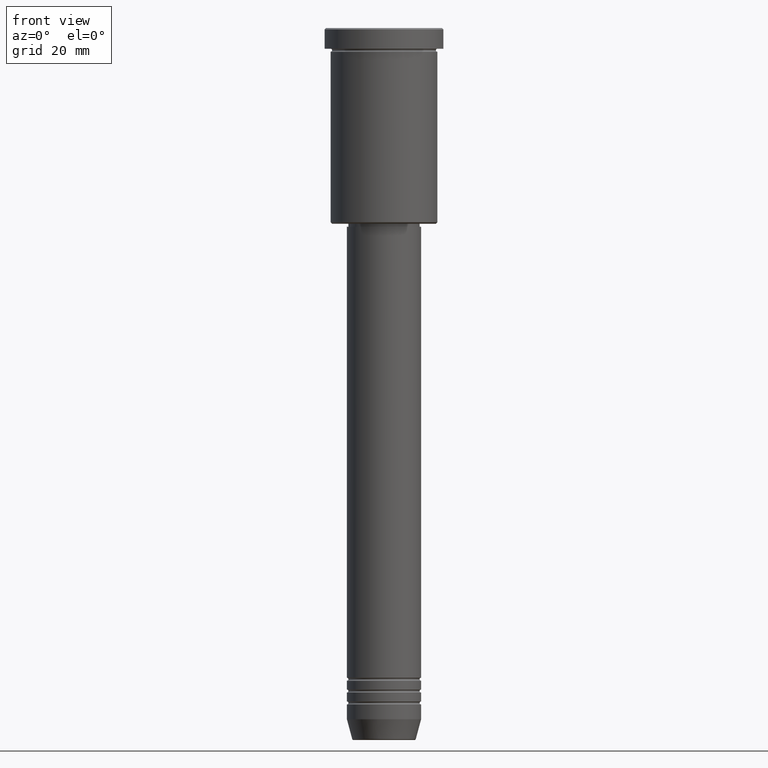
[diagram: clean part render]
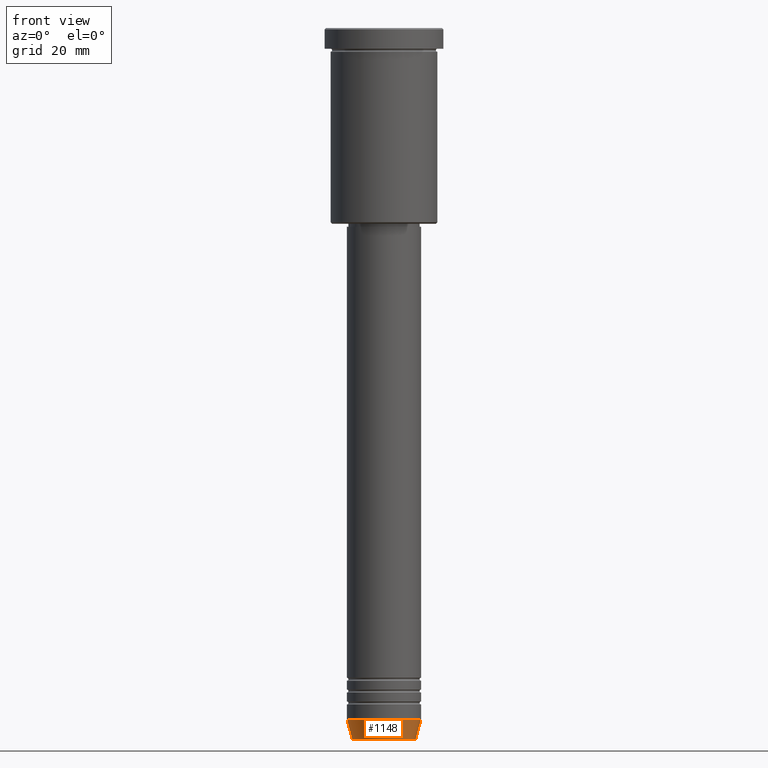
[diagram: same view with one face highlighted and labeled with its STEP entity id]
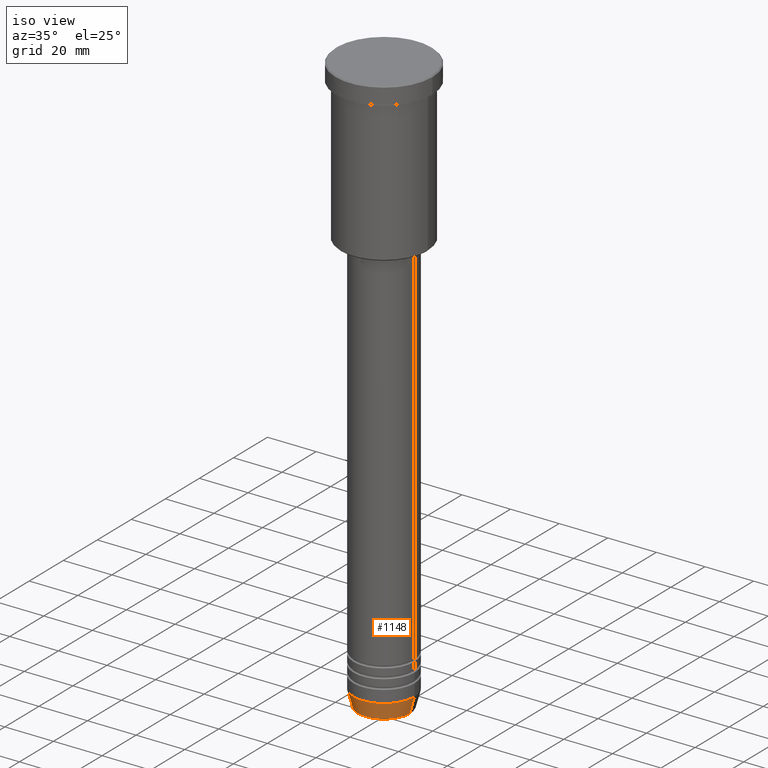
[diagram: same view with one face highlighted and labeled with its STEP entity id]
A machine part, front view. The second image highlights one B-rep face of the part: STEP entity #1148.
A second angle (iso view) of the same face is appended — the face is thin or edge-on in the first view.
In plain terms, the highlighted conical surface has half-angle 15 deg.
Its self-contained STEP definition (entity closure, byte-faithful):
#19 = CARTESIAN_POINT ( 'NONE',  ( 0.000000000000000000, 0.000000000000000000, -239.6294095225512706 ) ) ;
#29 = VERTEX_POINT ( 'NONE', #220 ) ;
#42 = LINE ( 'NONE', #649, #673 ) ;
#109 = VECTOR ( 'NONE', #262, 1000.000000000000000 ) ;
#134 = CARTESIAN_POINT ( 'NONE',  ( 10.72365507213719127, 0.000000000000000000, -239.6294095225512706 ) ) ;
#158 = CARTESIAN_POINT ( 'NONE',  ( -12.50000000000000000, 1.530808498934191521E-15, -233.0000000000000000 ) ) ;
#197 = DIRECTION ( 'NONE',  ( -0.000000000000000000, -0.000000000000000000, 1.000000000000000000 ) ) ;
#220 = CARTESIAN_POINT ( 'NONE',  ( 12.50000000000000000, 0.000000000000000000, -233.0000000000000000 ) ) ;
#223 = CONICAL_SURFACE ( 'NONE', #581, 12.50000000000000000, 0.2617993877991500740 ) ;
#262 = DIRECTION ( 'NONE',  ( -0.2588190451025213501, 3.169619151431772337E-17, 0.9659258262890680902 ) ) ;
#293 = EDGE_CURVE ( 'NONE', #568, #812, #501, .T. ) ;
#297 = DIRECTION ( 'NONE',  ( 1.000000000000000000, 0.000000000000000000, 0.000000000000000000 ) ) ;
#379 = EDGE_CURVE ( 'NONE', #812, #29, #42, .T. ) ;
#407 = FACE_OUTER_BOUND ( 'NONE', #1065, .T. ) ;
#419 = CARTESIAN_POINT ( 'NONE',  ( -10.72365507213719127, 1.422038742429750516E-15, -239.6294095225512706 ) ) ;
#433 = AXIS2_PLACEMENT_3D ( 'NONE', #19, #1009, #297 ) ;
#474 = ORIENTED_EDGE ( 'NONE', *, *, #790, .F. ) ;
#500 = VERTEX_POINT ( 'NONE', #158 ) ;
#501 = CIRCLE ( 'NONE', #433, 10.72365507213719127 ) ;
#519 = CARTESIAN_POINT ( 'NONE',  ( -12.50000000000000000, 1.530808498934191521E-15, -233.0000000000000000 ) ) ;
#568 = VERTEX_POINT ( 'NONE', #419 ) ;
#581 = AXIS2_PLACEMENT_3D ( 'NONE', #1149, #589, #967 ) ;
#589 = DIRECTION ( 'NONE',  ( -0.000000000000000000, -0.000000000000000000, 1.000000000000000000 ) ) ;
#649 = CARTESIAN_POINT ( 'NONE',  ( 12.50000000000000000, 0.000000000000000000, -233.0000000000000000 ) ) ;
#665 = ORIENTED_EDGE ( 'NONE', *, *, #293, .T. ) ;
#673 = VECTOR ( 'NONE', #1028, 1000.000000000000000 ) ;
#710 = LINE ( 'NONE', #519, #109 ) ;
#751 = EDGE_CURVE ( 'NONE', #568, #500, #710, .T. ) ;
#790 = EDGE_CURVE ( 'NONE', #500, #29, #857, .T. ) ;
#812 = VERTEX_POINT ( 'NONE', #134 ) ;
#819 = ORIENTED_EDGE ( 'NONE', *, *, #379, .T. ) ;
#841 = ORIENTED_EDGE ( 'NONE', *, *, #751, .F. ) ;
#857 = CIRCLE ( 'NONE', #1135, 12.50000000000000000 ) ;
#967 = DIRECTION ( 'NONE',  ( 1.000000000000000000, 0.000000000000000000, 0.000000000000000000 ) ) ;
#1000 = DIRECTION ( 'NONE',  ( 1.000000000000000000, 0.000000000000000000, 0.000000000000000000 ) ) ;
#1005 = CARTESIAN_POINT ( 'NONE',  ( 0.000000000000000000, 0.000000000000000000, -233.0000000000000000 ) ) ;
#1009 = DIRECTION ( 'NONE',  ( -0.000000000000000000, -0.000000000000000000, 1.000000000000000000 ) ) ;
#1028 = DIRECTION ( 'NONE',  ( 0.2588190451025213501, 0.000000000000000000, 0.9659258262890680902 ) ) ;
#1065 = EDGE_LOOP ( 'NONE', ( #841, #665, #819, #474 ) ) ;
#1135 = AXIS2_PLACEMENT_3D ( 'NONE', #1005, #197, #1000 ) ;
#1148 = ADVANCED_FACE ( 'NONE', ( #407 ), #223, .T. ) ;
#1149 = CARTESIAN_POINT ( 'NONE',  ( 0.000000000000000000, 0.000000000000000000, -233.0000000000000000 ) ) ;